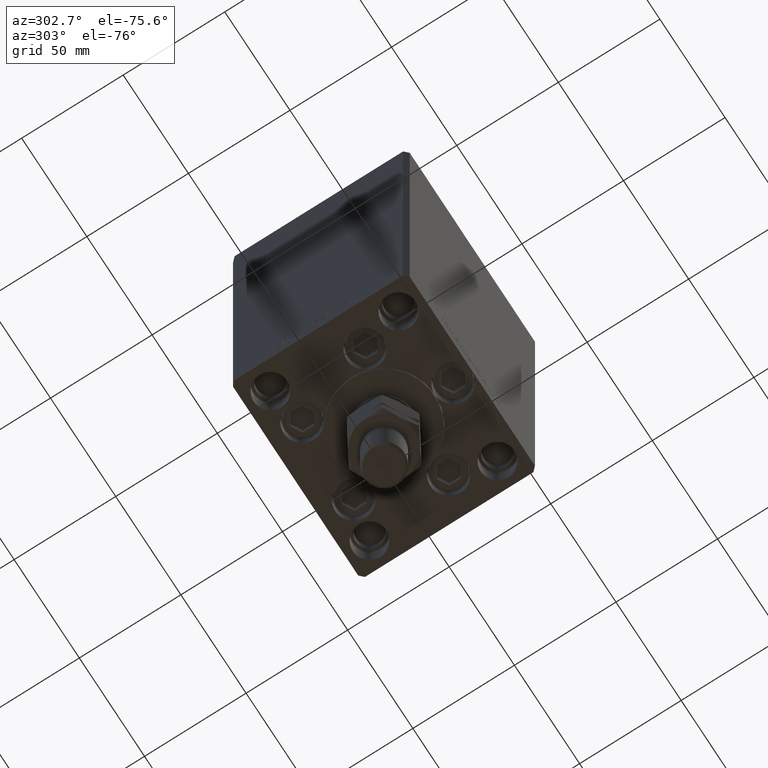
[diagram: clean part render]
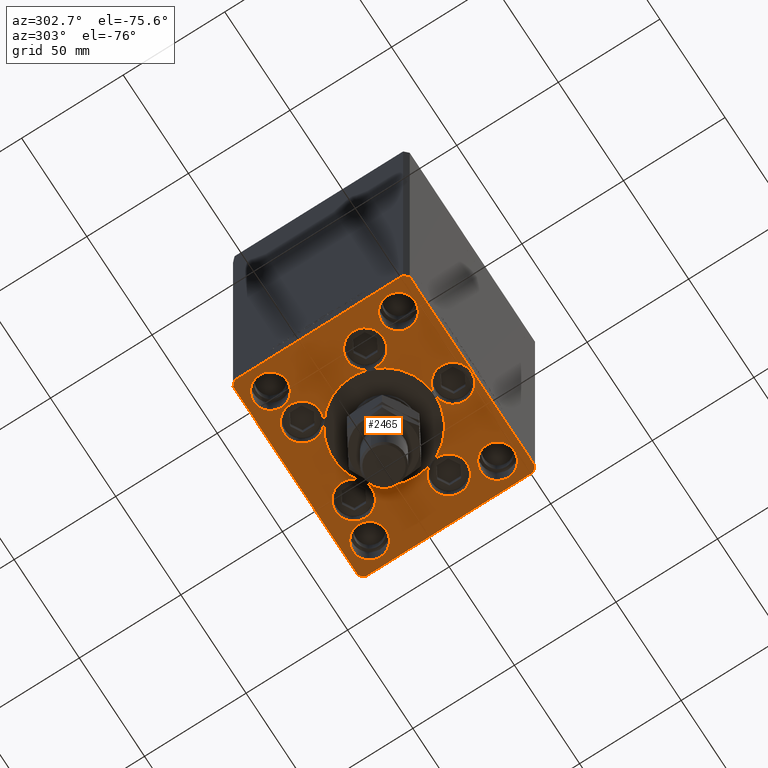
[diagram: same view with one face highlighted and labeled with its STEP entity id]
A machine part, auxiliary view. The second image highlights one B-rep face of the part: STEP entity #2465.
In plain terms, the highlighted planar face has unit normal (0, 0, -1).
Its self-contained STEP definition (entity closure, byte-faithful):
#56 = CIRCLE ( 'NONE', #40249, 25.00000000000000000 ) ;
#76 = EDGE_CURVE ( 'NONE', #20548, #31926, #21162, .T. ) ;
#130 = CIRCLE ( 'NONE', #8332, 9.000000000000000000 ) ;
#327 = CARTESIAN_POINT ( 'NONE',  ( 0.000000000000000000, -6.938893903907228378E-15, 0.000000000000000000 ) ) ;
#348 = VERTEX_POINT ( 'NONE', #1306 ) ;
#421 = ORIENTED_EDGE ( 'NONE', *, *, #17198, .F. ) ;
#777 = CARTESIAN_POINT ( 'NONE',  ( 38.00000000000000711, -31.50000000000000711, 0.000000000000000000 ) ) ;
#875 = FACE_BOUND ( 'NONE', #7483, .T. ) ;
#1029 = AXIS2_PLACEMENT_3D ( 'NONE', #49352, #18019, #21883 ) ;
#1036 = CARTESIAN_POINT ( 'NONE',  ( 38.00000000000000711, -31.50000000000000711, 0.000000000000000000 ) ) ;
#1306 = CARTESIAN_POINT ( 'NONE',  ( 46.25000000000000000, -31.50000000000000711, 0.000000000000000000 ) ) ;
#1418 = DIRECTION ( 'NONE',  ( 1.000000000000000000, 0.000000000000000000, 0.000000000000000000 ) ) ;
#1574 = ORIENTED_EDGE ( 'NONE', *, *, #76, .F. ) ;
#1645 = DIRECTION ( 'NONE',  ( 0.000000000000000000, 0.000000000000000000, 1.000000000000000000 ) ) ;
#1747 = CARTESIAN_POINT ( 'NONE',  ( -29.75000000000000711, -31.50000000000000711, 0.000000000000000000 ) ) ;
#1860 = VECTOR ( 'NONE', #24827, 1000.000000000000000 ) ;
#1948 = EDGE_CURVE ( 'NONE', #3847, #20507, #32556, .T. ) ;
#1996 = DIRECTION ( 'NONE',  ( 1.000000000000000000, 0.000000000000000000, 0.000000000000000000 ) ) ;
#2210 = CARTESIAN_POINT ( 'NONE',  ( 19.82068048781374969, 27.62499999999998934, 0.000000000000000000 ) ) ;
#2231 = AXIS2_PLACEMENT_3D ( 'NONE', #17037, #13433, #32211 ) ;
#2302 = AXIS2_PLACEMENT_3D ( 'NONE', #44920, #24925, #40574 ) ;
#2340 = CIRCLE ( 'NONE', #33491, 8.250000000000000000 ) ;
#2342 = CIRCLE ( 'NONE', #20383, 8.999999999999998224 ) ;
#2446 = ORIENTED_EDGE ( 'NONE', *, *, #31978, .F. ) ;
#2465 = ADVANCED_FACE ( 'NONE', ( #12674, #20392, #36044, #21155, #875, #17288 ), #16534, .T. ) ;
#2495 = CARTESIAN_POINT ( 'NONE',  ( -19.82068048781374969, 27.62499999999998934, 0.000000000000000000 ) ) ;
#2526 = ORIENTED_EDGE ( 'NONE', *, *, #36655, .T. ) ;
#2578 = EDGE_LOOP ( 'NONE', ( #34171, #8502 ) ) ;
#3005 = CIRCLE ( 'NONE', #39911, 25.00000000000000000 ) ;
#3067 = VERTEX_POINT ( 'NONE', #17109 ) ;
#3097 = DIRECTION ( 'NONE',  ( 1.000000000000000000, 0.000000000000000000, 0.000000000000000000 ) ) ;
#3584 = EDGE_LOOP ( 'NONE', ( #41722, #34083, #43877, #2526, #41768, #15159, #43374, #20589 ) ) ;
#3827 = DIRECTION ( 'NONE',  ( 0.000000000000000000, 0.000000000000000000, 1.000000000000000000 ) ) ;
#3847 = VERTEX_POINT ( 'NONE', #6178 ) ;
#4012 = AXIS2_PLACEMENT_3D ( 'NONE', #327, #19098, #15728 ) ;
#4207 = AXIS2_PLACEMENT_3D ( 'NONE', #2210, #5567, #10409 ) ;
#4361 = VERTEX_POINT ( 'NONE', #49383 ) ;
#4463 = VERTEX_POINT ( 'NONE', #36256 ) ;
#4650 = VERTEX_POINT ( 'NONE', #25713 ) ;
#4994 = DIRECTION ( 'NONE',  ( 0.7071067811865474617, 0.7071067811865474617, 0.000000000000000000 ) ) ;
#5134 = CIRCLE ( 'NONE', #47790, 9.000000000000000000 ) ;
#5176 = EDGE_CURVE ( 'NONE', #18949, #27639, #2340, .T. ) ;
#5299 = VERTEX_POINT ( 'NONE', #36877 ) ;
#5353 = ORIENTED_EDGE ( 'NONE', *, *, #13812, .F. ) ;
#5485 = LINE ( 'NONE', #12920, #30060 ) ;
#5567 = DIRECTION ( 'NONE',  ( 0.000000000000000000, 0.000000000000000000, 1.000000000000000000 ) ) ;
#5632 = CARTESIAN_POINT ( 'NONE',  ( 41.05550741379015989, -11.33333333333332860, 0.000000000000000000 ) ) ;
#5736 = VERTEX_POINT ( 'NONE', #45662 ) ;
#5946 = CARTESIAN_POINT ( 'NONE',  ( 47.99999999999999289, 43.50000000000000000, 0.000000000000000000 ) ) ;
#6097 = VERTEX_POINT ( 'NONE', #25018 ) ;
#6178 = CARTESIAN_POINT ( 'NONE',  ( 23.05550741379015633, -11.33333333333332682, 0.000000000000000000 ) ) ;
#6281 = CARTESIAN_POINT ( 'NONE',  ( -46.25000000000000711, -31.50000000000000711, 0.000000000000000000 ) ) ;
#6380 = ORIENTED_EDGE ( 'NONE', *, *, #1948, .F. ) ;
#6531 = VERTEX_POINT ( 'NONE', #5946 ) ;
#6695 = EDGE_CURVE ( 'NONE', #5299, #11718, #37205, .T. ) ;
#6743 = DIRECTION ( 'NONE',  ( 0.000000000000000000, 0.000000000000000000, 1.000000000000000000 ) ) ;
#7005 = CARTESIAN_POINT ( 'NONE',  ( 38.00000000000000000, 31.50000000000000000, 0.000000000000000000 ) ) ;
#7027 = EDGE_CURVE ( 'NONE', #39237, #9087, #30282, .T. ) ;
#7110 = CARTESIAN_POINT ( 'NONE',  ( 32.05550741379015989, -11.33333333333332860, 0.000000000000000000 ) ) ;
#7195 = CARTESIAN_POINT ( 'NONE',  ( 47.99999999999999289, 43.50000000000000000, 0.000000000000000000 ) ) ;
#7211 = AXIS2_PLACEMENT_3D ( 'NONE', #777, #13081, #16942 ) ;
#7244 = CARTESIAN_POINT ( 'NONE',  ( 38.00000000000000000, 31.50000000000000000, 0.000000000000000000 ) ) ;
#7483 = EDGE_LOOP ( 'NONE', ( #45677, #48005 ) ) ;
#7641 = CARTESIAN_POINT ( 'NONE',  ( 19.82068048781374969, 27.62499999999998934, 0.000000000000000000 ) ) ;
#7852 = VERTEX_POINT ( 'NONE', #11688 ) ;
#7998 = DIRECTION ( 'NONE',  ( 1.000000000000000000, 0.000000000000000000, 0.000000000000000000 ) ) ;
#8071 = CARTESIAN_POINT ( 'NONE',  ( -50.00000000000000000, -41.50000000000004263, 0.000000000000000000 ) ) ;
#8320 = CARTESIAN_POINT ( 'NONE',  ( 48.00000000000000711, -43.49999999999992184, 0.000000000000000000 ) ) ;
#8332 = AXIS2_PLACEMENT_3D ( 'NONE', #38985, #27686, #43097 ) ;
#8343 = DIRECTION ( 'NONE',  ( 1.000000000000000000, 0.000000000000000000, 0.000000000000000000 ) ) ;
#8502 = ORIENTED_EDGE ( 'NONE', *, *, #44019, .F. ) ;
#8990 = CARTESIAN_POINT ( 'NONE',  ( 0.000000000000000000, -25.00000000000000000, 0.000000000000000000 ) ) ;
#9087 = VERTEX_POINT ( 'NONE', #39219 ) ;
#9116 = CARTESIAN_POINT ( 'NONE',  ( 0.000000000000000000, -34.00000000000000000, 0.000000000000000000 ) ) ;
#9118 = VECTOR ( 'NONE', #4994, 1000.000000000000114 ) ;
#9837 = CARTESIAN_POINT ( 'NONE',  ( 0.000000000000000000, -6.938893903907228378E-15, 0.000000000000000000 ) ) ;
#10116 = LINE ( 'NONE', #25801, #48421 ) ;
#10164 = EDGE_CURVE ( 'NONE', #22364, #5299, #10116, .T. ) ;
#10392 = AXIS2_PLACEMENT_3D ( 'NONE', #7110, #22800, #16598 ) ;
#10409 = DIRECTION ( 'NONE',  ( 1.000000000000000000, 0.000000000000000000, 0.000000000000000000 ) ) ;
#10416 = CARTESIAN_POINT ( 'NONE',  ( -48.00000000000000000, 43.49999999999997158, 0.000000000000000000 ) ) ;
#11034 = ORIENTED_EDGE ( 'NONE', *, *, #48322, .F. ) ;
#11055 = AXIS2_PLACEMENT_3D ( 'NONE', #17090, #28913, #44572 ) ;
#11103 = EDGE_CURVE ( 'NONE', #34472, #3067, #42732, .T. ) ;
#11512 = AXIS2_PLACEMENT_3D ( 'NONE', #24604, #20750, #32305 ) ;
#11537 = DIRECTION ( 'NONE',  ( 0.000000000000000000, 0.000000000000000000, 1.000000000000000000 ) ) ;
#11624 = CIRCLE ( 'NONE', #37871, 25.00000000000000000 ) ;
#11688 = CARTESIAN_POINT ( 'NONE',  ( -41.05550741379015989, -11.33333333333332682, 0.000000000000000000 ) ) ;
#11718 = VERTEX_POINT ( 'NONE', #8071 ) ;
#11987 = DIRECTION ( 'NONE',  ( 0.000000000000000000, 0.000000000000000000, 1.000000000000000000 ) ) ;
#12050 = DIRECTION ( 'NONE',  ( 1.000000000000000000, 0.000000000000000000, 0.000000000000000000 ) ) ;
#12360 = CARTESIAN_POINT ( 'NONE',  ( -38.00000000000000000, 31.50000000000000000, 0.000000000000000000 ) ) ;
#12470 = CIRCLE ( 'NONE', #1029, 9.000000000000001776 ) ;
#12637 = CARTESIAN_POINT ( 'NONE',  ( -38.00000000000000711, -31.50000000000000711, 0.000000000000000000 ) ) ;
#12674 = FACE_BOUND ( 'NONE', #30604, .T. ) ;
#12920 = CARTESIAN_POINT ( 'NONE',  ( 50.00000000000000000, 41.50000000000000711, 0.000000000000000000 ) ) ;
#12985 = VERTEX_POINT ( 'NONE', #40639 ) ;
#13020 = DIRECTION ( 'NONE',  ( 0.000000000000000000, 0.000000000000000000, 1.000000000000000000 ) ) ;
#13050 = ORIENTED_EDGE ( 'NONE', *, *, #18175, .F. ) ;
#13081 = DIRECTION ( 'NONE',  ( 0.000000000000000000, 0.000000000000000000, 1.000000000000000000 ) ) ;
#13288 = CIRCLE ( 'NONE', #14085, 9.000000000000001776 ) ;
#13318 = ORIENTED_EDGE ( 'NONE', *, *, #32313, .F. ) ;
#13433 = DIRECTION ( 'NONE',  ( -0.000000000000000000, 0.000000000000000000, 1.000000000000000000 ) ) ;
#13660 = DIRECTION ( 'NONE',  ( 0.000000000000000000, 0.000000000000000000, 1.000000000000000000 ) ) ;
#13767 = AXIS2_PLACEMENT_3D ( 'NONE', #20465, #18376, #45334 ) ;
#13812 = EDGE_CURVE ( 'NONE', #20507, #39237, #12470, .T. ) ;
#13892 = DIRECTION ( 'NONE',  ( 0.000000000000000000, 0.000000000000000000, 1.000000000000000000 ) ) ;
#14085 = AXIS2_PLACEMENT_3D ( 'NONE', #34328, #49988, #14813 ) ;
#14200 = CIRCLE ( 'NONE', #50322, 8.250000000000000000 ) ;
#14407 = CARTESIAN_POINT ( 'NONE',  ( 0.000000000000000000, -34.00000000000000000, 0.000000000000000000 ) ) ;
#14562 = DIRECTION ( 'NONE',  ( 0.000000000000000000, 0.000000000000000000, 1.000000000000000000 ) ) ;
#14738 = DIRECTION ( 'NONE',  ( 1.000000000000000000, 0.000000000000000000, 0.000000000000000000 ) ) ;
#14786 = CARTESIAN_POINT ( 'NONE',  ( 14.57402977045128623, 20.31249999999998579, 0.000000000000000000 ) ) ;
#14813 = DIRECTION ( 'NONE',  ( 1.000000000000000000, 0.000000000000000000, 0.000000000000000000 ) ) ;
#15159 = ORIENTED_EDGE ( 'NONE', *, *, #30455, .T. ) ;
#15392 = CARTESIAN_POINT ( 'NONE',  ( -32.05550741379015989, -11.33333333333332860, 0.000000000000000000 ) ) ;
#15567 = ORIENTED_EDGE ( 'NONE', *, *, #19398, .F. ) ;
#15728 = DIRECTION ( 'NONE',  ( 1.000000000000000000, 0.000000000000000000, 0.000000000000000000 ) ) ;
#15852 = DIRECTION ( 'NONE',  ( 1.000000000000000000, 0.000000000000000000, 0.000000000000000000 ) ) ;
#16220 = DIRECTION ( 'NONE',  ( 0.000000000000000000, 0.000000000000000000, 1.000000000000000000 ) ) ;
#16534 = PLANE ( 'NONE',  #2231 ) ;
#16598 = DIRECTION ( 'NONE',  ( 1.000000000000000000, 0.000000000000000000, 0.000000000000000000 ) ) ;
#16693 = DIRECTION ( 'NONE',  ( 0.000000000000000000, 0.000000000000000000, 1.000000000000000000 ) ) ;
#16811 = LINE ( 'NONE', #8320, #9118 ) ;
#16942 = DIRECTION ( 'NONE',  ( 1.000000000000000000, 0.000000000000000000, 0.000000000000000000 ) ) ;
#17037 = CARTESIAN_POINT ( 'NONE',  ( 0.000000000000000000, 0.000000000000000000, 0.000000000000000000 ) ) ;
#17078 = CIRCLE ( 'NONE', #7211, 8.249999999999992895 ) ;
#17090 = CARTESIAN_POINT ( 'NONE',  ( 0.000000000000000000, -6.938893903907228378E-15, 0.000000000000000000 ) ) ;
#17109 = CARTESIAN_POINT ( 'NONE',  ( 9.000000000000000000, -34.00000000000000000, 0.000000000000000000 ) ) ;
#17198 = EDGE_CURVE ( 'NONE', #21893, #7852, #13288, .T. ) ;
#17221 = AXIS2_PLACEMENT_3D ( 'NONE', #49864, #13660, #45497 ) ;
#17288 = FACE_OUTER_BOUND ( 'NONE', #3584, .T. ) ;
#17403 = ORIENTED_EDGE ( 'NONE', *, *, #23112, .F. ) ;
#18019 = DIRECTION ( 'NONE',  ( 0.000000000000000000, 0.000000000000000000, 1.000000000000000000 ) ) ;
#18154 = DIRECTION ( 'NONE',  ( 1.000000000000000000, 0.000000000000000000, 0.000000000000000000 ) ) ;
#18175 = EDGE_CURVE ( 'NONE', #21893, #24681, #11624, .T. ) ;
#18376 = DIRECTION ( 'NONE',  ( 0.000000000000000000, 0.000000000000000000, 1.000000000000000000 ) ) ;
#18541 = EDGE_CURVE ( 'NONE', #45823, #34905, #18544, .T. ) ;
#18544 = LINE ( 'NONE', #38047, #19155 ) ;
#18618 = ORIENTED_EDGE ( 'NONE', *, *, #36075, .F. ) ;
#18731 = CIRCLE ( 'NONE', #2302, 9.000000000000001776 ) ;
#18842 = CIRCLE ( 'NONE', #47524, 9.000000000000000000 ) ;
#18949 = VERTEX_POINT ( 'NONE', #1747 ) ;
#19098 = DIRECTION ( 'NONE',  ( 0.000000000000000000, 0.000000000000000000, 1.000000000000000000 ) ) ;
#19155 = VECTOR ( 'NONE', #34461, 1000.000000000000000 ) ;
#19235 = CARTESIAN_POINT ( 'NONE',  ( -46.25000000000000000, 31.50000000000000000, 0.000000000000000000 ) ) ;
#19398 = EDGE_CURVE ( 'NONE', #5736, #44916, #32558, .T. ) ;
#19468 = EDGE_CURVE ( 'NONE', #49355, #34966, #3005, .T. ) ;
#19497 = DIRECTION ( 'NONE',  ( 1.000000000000000000, 0.000000000000000000, 0.000000000000000000 ) ) ;
#19714 = ORIENTED_EDGE ( 'NONE', *, *, #26076, .F. ) ;
#19885 = CARTESIAN_POINT ( 'NONE',  ( -48.00000000000000711, -43.50000000000002842, 0.000000000000000000 ) ) ;
#19921 = DIRECTION ( 'NONE',  ( 0.000000000000000000, 0.000000000000000000, 1.000000000000000000 ) ) ;
#20023 = ORIENTED_EDGE ( 'NONE', *, *, #27573, .F. ) ;
#20029 = ORIENTED_EDGE ( 'NONE', *, *, #44737, .F. ) ;
#20383 = AXIS2_PLACEMENT_3D ( 'NONE', #27868, #19921, #8343 ) ;
#20392 = FACE_BOUND ( 'NONE', #23676, .T. ) ;
#20465 = CARTESIAN_POINT ( 'NONE',  ( -38.00000000000000000, 31.50000000000000000, 0.000000000000000000 ) ) ;
#20467 = EDGE_CURVE ( 'NONE', #6097, #348, #24392, .T. ) ;
#20507 = VERTEX_POINT ( 'NONE', #5632 ) ;
#20548 = VERTEX_POINT ( 'NONE', #25664 ) ;
#20589 = ORIENTED_EDGE ( 'NONE', *, *, #6695, .T. ) ;
#20595 = DIRECTION ( 'NONE',  ( 1.000000000000000000, 0.000000000000000000, 0.000000000000000000 ) ) ;
#20706 = VERTEX_POINT ( 'NONE', #23084 ) ;
#20750 = DIRECTION ( 'NONE',  ( 0.000000000000000000, 0.000000000000000000, 1.000000000000000000 ) ) ;
#20995 = CARTESIAN_POINT ( 'NONE',  ( -50.00000000000000000, -41.50000000000004263, 0.000000000000000000 ) ) ;
#21155 = FACE_BOUND ( 'NONE', #2578, .T. ) ;
#21162 = CIRCLE ( 'NONE', #13767, 8.250000000000000000 ) ;
#21186 = CARTESIAN_POINT ( 'NONE',  ( -14.57402977045128978, 20.31249999999999289, 0.000000000000000000 ) ) ;
#21248 = CARTESIAN_POINT ( 'NONE',  ( 0.000000000000000000, -34.00000000000000000, 0.000000000000000000 ) ) ;
#21521 = ORIENTED_EDGE ( 'NONE', *, *, #38873, .F. ) ;
#21883 = DIRECTION ( 'NONE',  ( 1.000000000000000000, 0.000000000000000000, 0.000000000000000000 ) ) ;
#21893 = VERTEX_POINT ( 'NONE', #36405 ) ;
#22093 = EDGE_CURVE ( 'NONE', #26525, #42747, #48232, .T. ) ;
#22364 = VERTEX_POINT ( 'NONE', #10416 ) ;
#22429 = DIRECTION ( 'NONE',  ( 1.000000000000000000, 0.000000000000000000, 0.000000000000000000 ) ) ;
#22613 = EDGE_CURVE ( 'NONE', #348, #6097, #17078, .T. ) ;
#22671 = EDGE_CURVE ( 'NONE', #39237, #3847, #18731, .T. ) ;
#22800 = DIRECTION ( 'NONE',  ( 0.000000000000000000, 0.000000000000000000, 1.000000000000000000 ) ) ;
#22814 = AXIS2_PLACEMENT_3D ( 'NONE', #7641, #11987, #15852 ) ;
#23084 = CARTESIAN_POINT ( 'NONE',  ( -10.82068048781375147, 27.62499999999998934, 0.000000000000000000 ) ) ;
#23098 = EDGE_LOOP ( 'NONE', ( #1574, #21521 ) ) ;
#23112 = EDGE_CURVE ( 'NONE', #4463, #26525, #2342, .T. ) ;
#23131 = ORIENTED_EDGE ( 'NONE', *, *, #27105, .F. ) ;
#23138 = CARTESIAN_POINT ( 'NONE',  ( 0.000000000000000000, -6.938893903907228378E-15, 0.000000000000000000 ) ) ;
#23209 = AXIS2_PLACEMENT_3D ( 'NONE', #25213, #29063, #20595 ) ;
#23676 = EDGE_LOOP ( 'NONE', ( #15567, #40976 ) ) ;
#24186 = ORIENTED_EDGE ( 'NONE', *, *, #22093, .F. ) ;
#24392 = CIRCLE ( 'NONE', #28480, 8.249999999999992895 ) ;
#24604 = CARTESIAN_POINT ( 'NONE',  ( 0.000000000000000000, -6.938893903907228378E-15, 0.000000000000000000 ) ) ;
#24617 = CARTESIAN_POINT ( 'NONE',  ( 0.000000000000000000, -6.938893903907228378E-15, 0.000000000000000000 ) ) ;
#24641 = CIRCLE ( 'NONE', #41854, 9.000000000000000000 ) ;
#24681 = VERTEX_POINT ( 'NONE', #8990 ) ;
#24729 = DIRECTION ( 'NONE',  ( 1.000000000000000000, 0.000000000000000000, 0.000000000000000000 ) ) ;
#24827 = DIRECTION ( 'NONE',  ( 0.000000000000000000, 1.000000000000000000, 0.000000000000000000 ) ) ;
#24925 = DIRECTION ( 'NONE',  ( 0.000000000000000000, 0.000000000000000000, 1.000000000000000000 ) ) ;
#25018 = CARTESIAN_POINT ( 'NONE',  ( 29.75000000000001066, -31.50000000000000711, 0.000000000000000000 ) ) ;
#25213 = CARTESIAN_POINT ( 'NONE',  ( -32.05550741379015989, -11.33333333333332860, 0.000000000000000000 ) ) ;
#25664 = CARTESIAN_POINT ( 'NONE',  ( -29.75000000000000000, 31.50000000000000000, 0.000000000000000000 ) ) ;
#25713 = CARTESIAN_POINT ( 'NONE',  ( -28.82068048781374969, 27.62499999999998934, 0.000000000000000000 ) ) ;
#25724 = DIRECTION ( 'NONE',  ( 1.000000000000000000, 0.000000000000000000, 0.000000000000000000 ) ) ;
#25801 = CARTESIAN_POINT ( 'NONE',  ( -48.00000000000000000, 43.49999999999997158, 0.000000000000000000 ) ) ;
#26076 = EDGE_CURVE ( 'NONE', #3067, #24681, #18842, .T. ) ;
#26158 = CARTESIAN_POINT ( 'NONE',  ( -50.00000000000000711, 41.49999999999999289, 0.000000000000000000 ) ) ;
#26471 = ORIENTED_EDGE ( 'NONE', *, *, #34114, .F. ) ;
#26525 = VERTEX_POINT ( 'NONE', #40528 ) ;
#26978 = LINE ( 'NONE', #7195, #46823 ) ;
#27105 = EDGE_CURVE ( 'NONE', #9087, #42747, #43464, .T. ) ;
#27225 = AXIS2_PLACEMENT_3D ( 'NONE', #15392, #3827, #19497 ) ;
#27573 = EDGE_CURVE ( 'NONE', #24681, #34472, #24641, .T. ) ;
#27639 = VERTEX_POINT ( 'NONE', #6281 ) ;
#27686 = DIRECTION ( 'NONE',  ( 0.000000000000000000, 0.000000000000000000, 1.000000000000000000 ) ) ;
#27868 = CARTESIAN_POINT ( 'NONE',  ( 19.82068048781374969, 27.62499999999998934, 0.000000000000000000 ) ) ;
#28072 = CIRCLE ( 'NONE', #27225, 9.000000000000001776 ) ;
#28480 = AXIS2_PLACEMENT_3D ( 'NONE', #1036, #16693, #12050 ) ;
#28601 = DIRECTION ( 'NONE',  ( -0.7071067811865512365, 0.7071067811865439090, 0.000000000000000000 ) ) ;
#28913 = DIRECTION ( 'NONE',  ( 0.000000000000000000, 0.000000000000000000, 1.000000000000000000 ) ) ;
#28963 = CIRCLE ( 'NONE', #23209, 9.000000000000001776 ) ;
#29063 = DIRECTION ( 'NONE',  ( 0.000000000000000000, 0.000000000000000000, 1.000000000000000000 ) ) ;
#29096 = CIRCLE ( 'NONE', #11055, 25.00000000000000000 ) ;
#29140 = EDGE_CURVE ( 'NONE', #44916, #5736, #44356, .T. ) ;
#29192 = DIRECTION ( 'NONE',  ( 0.000000000000000000, 0.000000000000000000, 1.000000000000000000 ) ) ;
#29289 = CARTESIAN_POINT ( 'NONE',  ( 23.57022603955158502, -8.333333333333332149, 0.000000000000000000 ) ) ;
#29502 = DIRECTION ( 'NONE',  ( 8.360113137237620037E-17, -1.000000000000000000, 0.000000000000000000 ) ) ;
#29861 = AXIS2_PLACEMENT_3D ( 'NONE', #12637, #43461, #24729 ) ;
#29997 = EDGE_CURVE ( 'NONE', #34905, #4361, #16811, .T. ) ;
#30060 = VECTOR ( 'NONE', #28601, 999.9999999999998863 ) ;
#30141 = LINE ( 'NONE', #20995, #47897 ) ;
#30282 = CIRCLE ( 'NONE', #4012, 25.00000000000000000 ) ;
#30455 = EDGE_CURVE ( 'NONE', #6531, #22364, #26978, .T. ) ;
#30604 = EDGE_LOOP ( 'NONE', ( #49568, #24186, #17403, #11034, #23131, #34162, #5353, #6380, #31739, #2446, #19714, #30987, #20023, #13050, #47705, #18618, #421, #20029, #50085, #26471, #13318, #38755 ) ) ;
#30987 = ORIENTED_EDGE ( 'NONE', *, *, #11103, .F. ) ;
#31212 = CIRCLE ( 'NONE', #11512, 25.00000000000000000 ) ;
#31214 = AXIS2_PLACEMENT_3D ( 'NONE', #14407, #13892, #25724 ) ;
#31739 = ORIENTED_EDGE ( 'NONE', *, *, #22671, .F. ) ;
#31913 = CARTESIAN_POINT ( 'NONE',  ( -23.05550741379015633, -11.33333333333332860, 0.000000000000000000 ) ) ;
#31926 = VERTEX_POINT ( 'NONE', #19235 ) ;
#31975 = DIRECTION ( 'NONE',  ( 0.000000000000000000, 0.000000000000000000, 1.000000000000000000 ) ) ;
#31978 = EDGE_CURVE ( 'NONE', #24681, #39237, #31212, .T. ) ;
#32211 = DIRECTION ( 'NONE',  ( 1.000000000000000000, 0.000000000000000000, 0.000000000000000000 ) ) ;
#32305 = DIRECTION ( 'NONE',  ( 1.000000000000000000, 0.000000000000000000, 0.000000000000000000 ) ) ;
#32313 = EDGE_CURVE ( 'NONE', #20706, #4650, #37765, .T. ) ;
#32556 = CIRCLE ( 'NONE', #10392, 9.000000000000001776 ) ;
#32558 = CIRCLE ( 'NONE', #39088, 8.250000000000000000 ) ;
#32980 = DIRECTION ( 'NONE',  ( 1.000000000000000000, 0.000000000000000000, 0.000000000000000000 ) ) ;
#33269 = CARTESIAN_POINT ( 'NONE',  ( 50.00000000000000000, -41.49999999999992895, 0.000000000000000000 ) ) ;
#33491 = AXIS2_PLACEMENT_3D ( 'NONE', #40500, #29192, #37141 ) ;
#33691 = CARTESIAN_POINT ( 'NONE',  ( 48.00000000000000711, -43.49999999999992184, 0.000000000000000000 ) ) ;
#33751 = CIRCLE ( 'NONE', #4207, 8.999999999999998224 ) ;
#33923 = VERTEX_POINT ( 'NONE', #31913 ) ;
#33967 = CIRCLE ( 'NONE', #29861, 8.250000000000000000 ) ;
#34083 = ORIENTED_EDGE ( 'NONE', *, *, #18541, .T. ) ;
#34114 = EDGE_CURVE ( 'NONE', #4650, #49355, #130, .T. ) ;
#34162 = ORIENTED_EDGE ( 'NONE', *, *, #7027, .F. ) ;
#34171 = ORIENTED_EDGE ( 'NONE', *, *, #5176, .F. ) ;
#34328 = CARTESIAN_POINT ( 'NONE',  ( -32.05550741379015989, -11.33333333333332860, 0.000000000000000000 ) ) ;
#34461 = DIRECTION ( 'NONE',  ( 1.000000000000000000, 1.156482317317871331E-15, 0.000000000000000000 ) ) ;
#34472 = VERTEX_POINT ( 'NONE', #47387 ) ;
#34489 = AXIS2_PLACEMENT_3D ( 'NONE', #45801, #37334, #14738 ) ;
#34905 = VERTEX_POINT ( 'NONE', #33691 ) ;
#34966 = VERTEX_POINT ( 'NONE', #42666 ) ;
#36017 = VECTOR ( 'NONE', #29502, 1000.000000000000000 ) ;
#36044 = FACE_BOUND ( 'NONE', #23098, .T. ) ;
#36075 = EDGE_CURVE ( 'NONE', #7852, #33923, #28072, .T. ) ;
#36256 = CARTESIAN_POINT ( 'NONE',  ( 28.82068048781374969, 27.62499999999998934, 0.000000000000000000 ) ) ;
#36405 = CARTESIAN_POINT ( 'NONE',  ( -23.57022603955158502, -8.333333333333332149, 0.000000000000000000 ) ) ;
#36491 = EDGE_CURVE ( 'NONE', #49355, #20706, #5134, .T. ) ;
#36638 = DIRECTION ( 'NONE',  ( 1.000000000000000000, 0.000000000000000000, 0.000000000000000000 ) ) ;
#36655 = EDGE_CURVE ( 'NONE', #4361, #12985, #37357, .T. ) ;
#36877 = CARTESIAN_POINT ( 'NONE',  ( -50.00000000000000711, 41.49999999999999289, 0.000000000000000000 ) ) ;
#37141 = DIRECTION ( 'NONE',  ( 1.000000000000000000, 0.000000000000000000, 0.000000000000000000 ) ) ;
#37168 = DIRECTION ( 'NONE',  ( 0.000000000000000000, 0.000000000000000000, 1.000000000000000000 ) ) ;
#37205 = LINE ( 'NONE', #26158, #36017 ) ;
#37334 = DIRECTION ( 'NONE',  ( 0.000000000000000000, 0.000000000000000000, 1.000000000000000000 ) ) ;
#37357 = LINE ( 'NONE', #33269, #1860 ) ;
#37765 = CIRCLE ( 'NONE', #34489, 9.000000000000000000 ) ;
#37871 = AXIS2_PLACEMENT_3D ( 'NONE', #24617, #37168, #1996 ) ;
#38047 = CARTESIAN_POINT ( 'NONE',  ( -48.00000000000000711, -43.50000000000002842, 0.000000000000000000 ) ) ;
#38109 = EDGE_CURVE ( 'NONE', #33923, #21893, #28963, .T. ) ;
#38317 = DIRECTION ( 'NONE',  ( 1.000000000000000000, 0.000000000000000000, 0.000000000000000000 ) ) ;
#38755 = ORIENTED_EDGE ( 'NONE', *, *, #36491, .F. ) ;
#38873 = EDGE_CURVE ( 'NONE', #31926, #20548, #14200, .T. ) ;
#38985 = CARTESIAN_POINT ( 'NONE',  ( -19.82068048781374969, 27.62499999999998934, 0.000000000000000000 ) ) ;
#39088 = AXIS2_PLACEMENT_3D ( 'NONE', #7005, #46305, #38317 ) ;
#39219 = CARTESIAN_POINT ( 'NONE',  ( 25.00000000000000000, -3.877276906038844941E-15, 0.000000000000000000 ) ) ;
#39237 = VERTEX_POINT ( 'NONE', #29289 ) ;
#39911 = AXIS2_PLACEMENT_3D ( 'NONE', #23138, #11537, #3097 ) ;
#40244 = DIRECTION ( 'NONE',  ( 0.7071067811865487940, -0.7071067811865463515, 0.000000000000000000 ) ) ;
#40249 = AXIS2_PLACEMENT_3D ( 'NONE', #9837, #1645, #32980 ) ;
#40500 = CARTESIAN_POINT ( 'NONE',  ( -38.00000000000000711, -31.50000000000000711, 0.000000000000000000 ) ) ;
#40528 = CARTESIAN_POINT ( 'NONE',  ( 10.82068048781375147, 27.62499999999998934, 0.000000000000000000 ) ) ;
#40574 = DIRECTION ( 'NONE',  ( 1.000000000000000000, 0.000000000000000000, 0.000000000000000000 ) ) ;
#40639 = CARTESIAN_POINT ( 'NONE',  ( 50.00000000000000000, 41.50000000000000711, 0.000000000000000000 ) ) ;
#40976 = ORIENTED_EDGE ( 'NONE', *, *, #29140, .F. ) ;
#41445 = DIRECTION ( 'NONE',  ( -0.7071067811865536790, -0.7071067811865414665, 0.000000000000000000 ) ) ;
#41722 = ORIENTED_EDGE ( 'NONE', *, *, #43857, .T. ) ;
#41768 = ORIENTED_EDGE ( 'NONE', *, *, #45992, .T. ) ;
#41854 = AXIS2_PLACEMENT_3D ( 'NONE', #21248, #13020, #36638 ) ;
#42634 = DIRECTION ( 'NONE',  ( -1.000000000000000000, -2.891205793294678326E-16, 0.000000000000000000 ) ) ;
#42666 = CARTESIAN_POINT ( 'NONE',  ( -25.00000000000000000, -6.938893903907228378E-15, 0.000000000000000000 ) ) ;
#42732 = CIRCLE ( 'NONE', #31214, 9.000000000000000000 ) ;
#42747 = VERTEX_POINT ( 'NONE', #14786 ) ;
#43097 = DIRECTION ( 'NONE',  ( 1.000000000000000000, 0.000000000000000000, 0.000000000000000000 ) ) ;
#43374 = ORIENTED_EDGE ( 'NONE', *, *, #10164, .T. ) ;
#43461 = DIRECTION ( 'NONE',  ( 0.000000000000000000, 0.000000000000000000, 1.000000000000000000 ) ) ;
#43464 = CIRCLE ( 'NONE', #17221, 25.00000000000000000 ) ;
#43857 = EDGE_CURVE ( 'NONE', #11718, #45823, #30141, .T. ) ;
#43877 = ORIENTED_EDGE ( 'NONE', *, *, #29997, .T. ) ;
#44019 = EDGE_CURVE ( 'NONE', #27639, #18949, #33967, .T. ) ;
#44356 = CIRCLE ( 'NONE', #45999, 8.250000000000000000 ) ;
#44572 = DIRECTION ( 'NONE',  ( 1.000000000000000000, 0.000000000000000000, 0.000000000000000000 ) ) ;
#44737 = EDGE_CURVE ( 'NONE', #34966, #21893, #29096, .T. ) ;
#44916 = VERTEX_POINT ( 'NONE', #49679 ) ;
#44920 = CARTESIAN_POINT ( 'NONE',  ( 32.05550741379015989, -11.33333333333332860, 0.000000000000000000 ) ) ;
#45334 = DIRECTION ( 'NONE',  ( 1.000000000000000000, 0.000000000000000000, 0.000000000000000000 ) ) ;
#45497 = DIRECTION ( 'NONE',  ( 1.000000000000000000, 0.000000000000000000, 0.000000000000000000 ) ) ;
#45662 = CARTESIAN_POINT ( 'NONE',  ( 46.25000000000000000, 31.50000000000000000, 0.000000000000000000 ) ) ;
#45677 = ORIENTED_EDGE ( 'NONE', *, *, #22613, .F. ) ;
#45801 = CARTESIAN_POINT ( 'NONE',  ( -19.82068048781374969, 27.62499999999998934, 0.000000000000000000 ) ) ;
#45823 = VERTEX_POINT ( 'NONE', #19885 ) ;
#45992 = EDGE_CURVE ( 'NONE', #12985, #6531, #5485, .T. ) ;
#45999 = AXIS2_PLACEMENT_3D ( 'NONE', #7244, #6743, #22429 ) ;
#46305 = DIRECTION ( 'NONE',  ( 0.000000000000000000, 0.000000000000000000, 1.000000000000000000 ) ) ;
#46823 = VECTOR ( 'NONE', #42634, 1000.000000000000000 ) ;
#47387 = CARTESIAN_POINT ( 'NONE',  ( -9.000000000000000000, -34.00000000000000000, 0.000000000000000000 ) ) ;
#47524 = AXIS2_PLACEMENT_3D ( 'NONE', #9116, #31975, #1418 ) ;
#47705 = ORIENTED_EDGE ( 'NONE', *, *, #38109, .F. ) ;
#47760 = EDGE_CURVE ( 'NONE', #42747, #49355, #56, .T. ) ;
#47790 = AXIS2_PLACEMENT_3D ( 'NONE', #2495, #14562, #18154 ) ;
#47897 = VECTOR ( 'NONE', #40244, 1000.000000000000000 ) ;
#48005 = ORIENTED_EDGE ( 'NONE', *, *, #20467, .F. ) ;
#48232 = CIRCLE ( 'NONE', #22814, 8.999999999999998224 ) ;
#48322 = EDGE_CURVE ( 'NONE', #42747, #4463, #33751, .T. ) ;
#48421 = VECTOR ( 'NONE', #41445, 1000.000000000000000 ) ;
#49352 = CARTESIAN_POINT ( 'NONE',  ( 32.05550741379015989, -11.33333333333332860, 0.000000000000000000 ) ) ;
#49355 = VERTEX_POINT ( 'NONE', #21186 ) ;
#49383 = CARTESIAN_POINT ( 'NONE',  ( 50.00000000000000000, -41.49999999999992895, 0.000000000000000000 ) ) ;
#49568 = ORIENTED_EDGE ( 'NONE', *, *, #47760, .F. ) ;
#49679 = CARTESIAN_POINT ( 'NONE',  ( 29.74999999999999645, 31.50000000000000000, 0.000000000000000000 ) ) ;
#49864 = CARTESIAN_POINT ( 'NONE',  ( 0.000000000000000000, -6.938893903907228378E-15, 0.000000000000000000 ) ) ;
#49988 = DIRECTION ( 'NONE',  ( 0.000000000000000000, 0.000000000000000000, 1.000000000000000000 ) ) ;
#50085 = ORIENTED_EDGE ( 'NONE', *, *, #19468, .F. ) ;
#50322 = AXIS2_PLACEMENT_3D ( 'NONE', #12360, #16220, #7998 ) ;